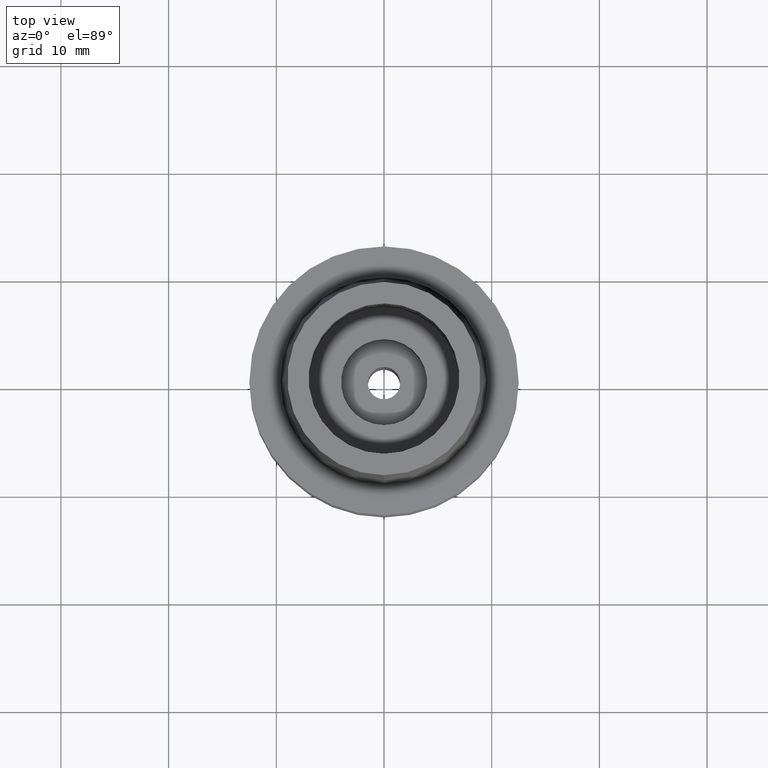
[diagram: clean part render]
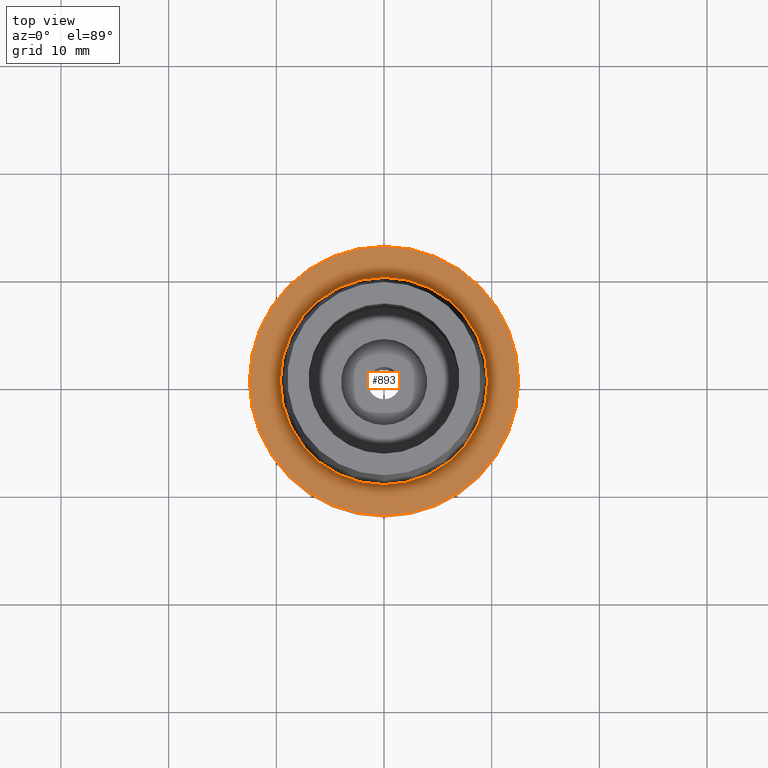
[diagram: same view with one face highlighted and labeled with its STEP entity id]
A machine part, top view. The second image highlights one B-rep face of the part: STEP entity #893.
In plain terms, the highlighted planar face has unit normal (0, 0, -1).
Its self-contained STEP definition (entity closure, byte-faithful):
#64=CARTESIAN_POINT('',(0.E0,1.419365640212E-14,1.953992523340E-14));
#65=DIRECTION('',(0.E0,0.E0,-1.E0));
#66=DIRECTION('',(0.E0,-1.E0,0.E0));
#67=AXIS2_PLACEMENT_3D('',#64,#65,#66);
#72=CARTESIAN_POINT('',(0.E0,1.419365640212E-14,1.953992523340E-14));
#73=DIRECTION('',(0.E0,0.E0,-1.E0));
#74=DIRECTION('',(0.E0,1.E0,0.E0));
#75=AXIS2_PLACEMENT_3D('',#72,#73,#74);
#80=CARTESIAN_POINT('',(0.E0,1.304248841092E-14,2.557953848736E-13));
#81=DIRECTION('',(0.E0,0.E0,1.E0));
#82=DIRECTION('',(0.E0,-1.E0,0.E0));
#83=AXIS2_PLACEMENT_3D('',#80,#81,#82);
#88=CARTESIAN_POINT('',(0.E0,1.304248841092E-14,2.557953848736E-13));
#89=DIRECTION('',(0.E0,0.E0,1.E0));
#90=DIRECTION('',(0.E0,1.E0,0.E0));
#91=AXIS2_PLACEMENT_3D('',#88,#89,#90);
#824=CARTESIAN_POINT('',(0.E0,1.25E1,1.302661682227E-14));
#825=VERTEX_POINT('',#824);
#826=CARTESIAN_POINT('',(0.E0,-1.25E1,1.953992523340E-14));
#827=VERTEX_POINT('',#826);
#828=CARTESIAN_POINT('',(0.E0,-9.624999771398E0,2.557953848736E-13));
#829=CARTESIAN_POINT('',(0.E0,9.624999771398E0,2.557953848736E-13));
#830=VERTEX_POINT('',#828);
#831=VERTEX_POINT('',#829);
#878=CARTESIAN_POINT('',(0.E0,1.224646799147E-14,0.E0));
#879=DIRECTION('',(0.E0,0.E0,-1.E0));
#880=DIRECTION('',(0.E0,-1.E0,0.E0));
#881=AXIS2_PLACEMENT_3D('',#878,#879,#880);
#882=PLANE('',#881);
#884=ORIENTED_EDGE('',*,*,#883,.T.);
#886=ORIENTED_EDGE('',*,*,#885,.T.);
#887=EDGE_LOOP('',(#884,#886));
#888=FACE_OUTER_BOUND('',#887,.F.);
#889=ORIENTED_EDGE('',*,*,#871,.T.);
#890=ORIENTED_EDGE('',*,*,#860,.T.);
#891=EDGE_LOOP('',(#889,#890));
#892=FACE_BOUND('',#891,.F.);
#68=CIRCLE('',#67,1.25E1);
#76=CIRCLE('',#75,1.25E1);
#84=CIRCLE('',#83,9.624999771398E0);
#92=CIRCLE('',#91,9.624999771398E0);
#860=EDGE_CURVE('',#831,#830,#92,.T.);
#871=EDGE_CURVE('',#830,#831,#84,.T.);
#883=EDGE_CURVE('',#827,#825,#68,.T.);
#885=EDGE_CURVE('',#825,#827,#76,.T.);
#893=ADVANCED_FACE('',(#888,#892),#882,.F.);